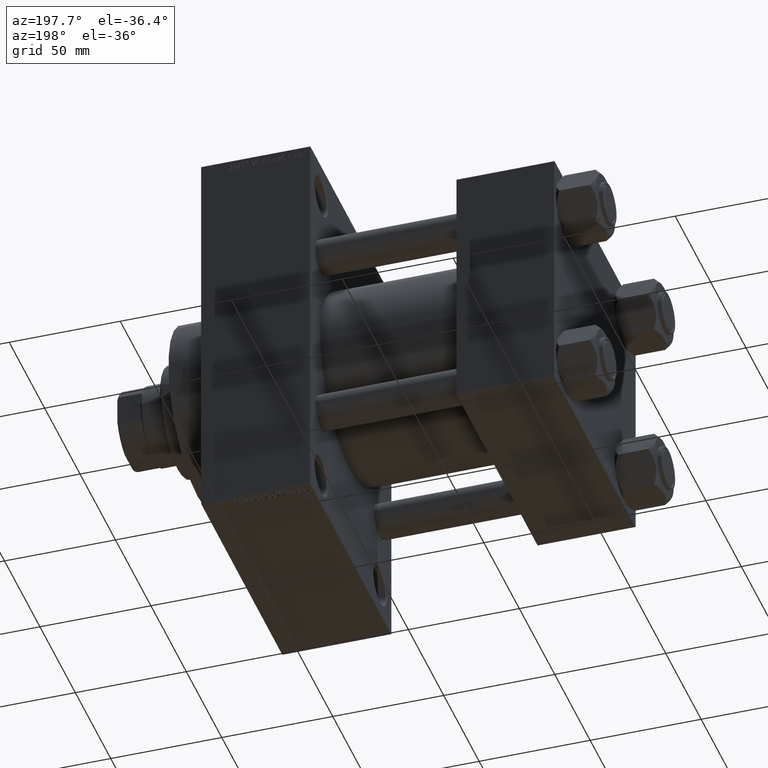
[diagram: clean part render]
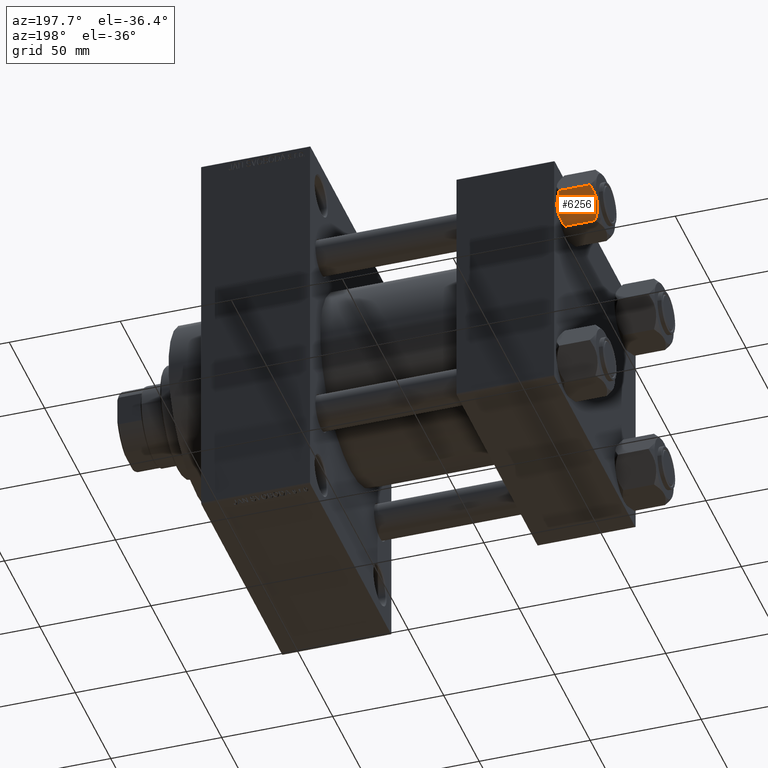
[diagram: same view with one face highlighted and labeled with its STEP entity id]
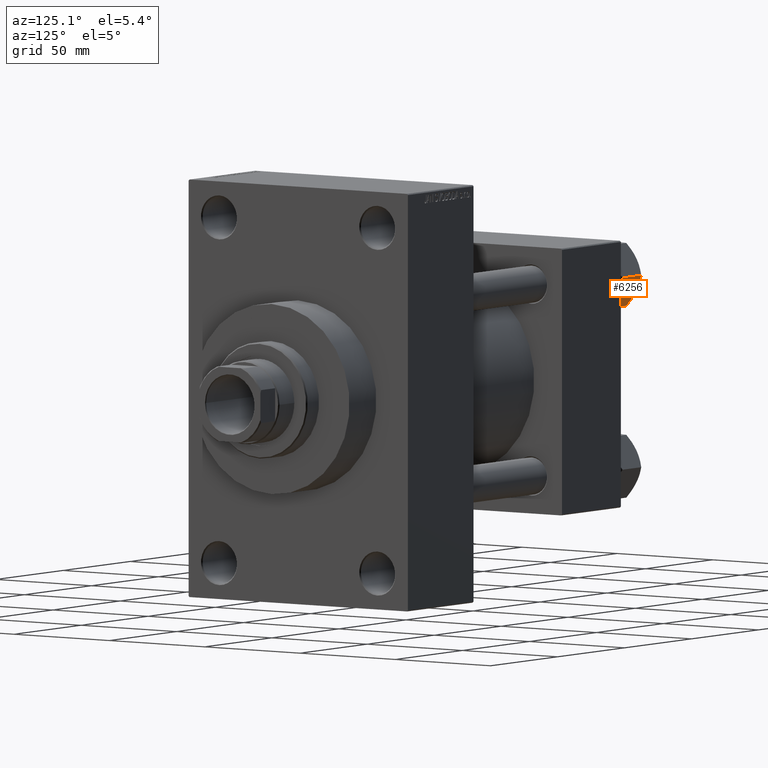
[diagram: same view with one face highlighted and labeled with its STEP entity id]
A machine part, auxiliary view. The second image highlights one B-rep face of the part: STEP entity #6256.
A second angle (auxiliary view) of the same face is appended — the face is thin or edge-on in the first view.
In plain terms, the highlighted planar face has unit normal (-0, -0.866, 0.5).
Its self-contained STEP definition (entity closure, byte-faithful):
#491 = DIRECTION ( 'NONE',  ( -0.8660254037844387076, -0.4999999999999999445, 0.000000000000000000 ) ) ;
#674 = EDGE_CURVE ( 'NONE', #12851, #747, #17243, .T. ) ;
#747 = VERTEX_POINT ( 'NONE', #45931 ) ;
#1223 = ORIENTED_EDGE ( 'NONE', *, *, #23097, .F. ) ;
#1274 = CARTESIAN_POINT ( 'NONE',  ( 15.52647173767732980, 0.1619957022865022300, -16.00000000000000000 ) ) ;
#1327 = LINE ( 'NONE', #11978, #15744 ) ;
#2324 = ORIENTED_EDGE ( 'NONE', *, *, #46657, .F. ) ;
#2603 = ORIENTED_EDGE ( 'NONE', *, *, #12906, .F. ) ;
#2804 = LINE ( 'NONE', #17521, #21086 ) ;
#4386 = ORIENTED_EDGE ( 'NONE', *, *, #29145, .F. ) ;
#4981 = EDGE_CURVE ( 'NONE', #14724, #28243, #32180, .T. ) ;
#5176 = CARTESIAN_POINT ( 'NONE',  ( 13.02784502466562699, 4.489744118371587156, -17.80281335400755083 ) ) ;
#6256 = ADVANCED_FACE ( 'NONE', ( #7038 ), #33533, .F. ) ;
#7038 = FACE_OUTER_BOUND ( 'NONE', #22207, .T. ) ;
#7987 = CARTESIAN_POINT ( 'NONE',  ( 7.810000000000001386, 13.52731680711293905, -18.00000000000000000 ) ) ;
#8601 = CARTESIAN_POINT ( 'NONE',  ( 8.502393313253755025, 12.32805640973648309, -16.58801072835992585 ) ) ;
#8981 = VERTEX_POINT ( 'NONE', #43985 ) ;
#9034 = VERTEX_POINT ( 'NONE', #43511 ) ;
#9283 = ORIENTED_EDGE ( 'NONE', *, *, #27317, .T. ) ;
#9458 = CARTESIAN_POINT ( 'NONE',  ( 8.506059550806622127, 12.32170630002230283, -1.434462921875002683 ) ) ;
#9694 = CARTESIAN_POINT ( 'NONE',  ( 9.124083218049239719, 11.25125790807803483, -0.9473872146228128344 ) ) ;
#9742 = ORIENTED_EDGE ( 'NONE', *, *, #4981, .F. ) ;
#10916 = DIRECTION ( 'NONE',  ( 0.4999999999999999445, -0.8660254037844387076, 0.000000000000000000 ) ) ;
#11978 = CARTESIAN_POINT ( 'NONE',  ( 7.810000000000001386, 13.52731680711293905, -16.00000000000000000 ) ) ;
#12007 = ORIENTED_EDGE ( 'NONE', *, *, #17700, .F. ) ;
#12046 = B_SPLINE_CURVE_WITH_KNOTS ( 'NONE', 3,
 ( #41631, #8601, #26221, #33677, #41155, #26927, #16057, #23064 ),
 .UNSPECIFIED., .F., .F.,
 ( 4, 2, 2, 4 ),
 ( 4.472842641813524820E-07, 0.003945636373369301383, 0.005918230917921860935, 0.007890825462474420487 ),
 .UNSPECIFIED. ) ;
#12851 = VERTEX_POINT ( 'NONE', #17112 ) ;
#12906 = EDGE_CURVE ( 'NONE', #44773, #12851, #42910, .T. ) ;
#13318 = CARTESIAN_POINT ( 'NONE',  ( 11.05297796109638320, 7.910314210667883650, 2.165016213181991667E-15 ) ) ;
#13552 = CARTESIAN_POINT ( 'NONE',  ( 9.439480280627263298, 10.70497417113492489, -0.7317196846281137645 ) ) ;
#13629 = VECTOR ( 'NONE', #47331, 999.9999999999998863 ) ;
#13812 = CARTESIAN_POINT ( 'NONE',  ( 7.810000000000001386, 13.52731680711293905, -16.00000000000000000 ) ) ;
#14047 = LINE ( 'NONE', #13812, #35471 ) ;
#14724 = VERTEX_POINT ( 'NONE', #16410 ) ;
#15421 = CARTESIAN_POINT ( 'NONE',  ( 15.62000000000000455, -1.379485931020374819E-15, -16.00000000000000000 ) ) ;
#15744 = VECTOR ( 'NONE', #16050, 999.9999999999998863 ) ;
#15781 = VECTOR ( 'NONE', #21098, 999.9999999999998863 ) ;
#16037 = CARTESIAN_POINT ( 'NONE',  ( 12.37702203890362895, 5.617002596445055396, -18.00000000000001066 ) ) ;
#16050 = DIRECTION ( 'NONE',  ( 0.4999999999999999445, -0.8660254037844387076, 0.000000000000000000 ) ) ;
#16057 = CARTESIAN_POINT ( 'NONE',  ( 11.38181071908714870, 7.340759166634869715, -18.00000000000000355 ) ) ;
#16100 = EDGE_CURVE ( 'NONE', #40617, #17999, #22963, .T. ) ;
#16410 = CARTESIAN_POINT ( 'NONE',  ( 7.903528262322677023, 13.36532110482643176, -2.000000000000000000 ) ) ;
#16832 = CARTESIAN_POINT ( 'NONE',  ( 12.04818928091285812, 6.186557640478062225, 2.165016213181991667E-15 ) ) ;
#16849 = B_SPLINE_CURVE_WITH_KNOTS ( 'NONE', 3,
 ( #42711, #13318, #35236, #13552, #9694, #9458, #39096, #20292 ),
 .UNSPECIFIED., .F., .F.,
 ( 4, 2, 2, 4 ),
 ( 0.007890825462474437835, 0.01181022244528555538, 0.01376992093669111156, 0.01572961942809666946 ),
 .UNSPECIFIED. ) ;
#17072 = CARTESIAN_POINT ( 'NONE',  ( 13.04337073483128506, 4.462852799541082938, -0.2430846701012968347 ) ) ;
#17112 = CARTESIAN_POINT ( 'NONE',  ( 15.62000000000000455, -1.379485931020374819E-15, -1.999999999999998224 ) ) ;
#17221 = CARTESIAN_POINT ( 'NONE',  ( 7.810000000000001386, 13.52731680711293905, -1.999999999999998224 ) ) ;
#17243 = LINE ( 'NONE', #42328, #15781 ) ;
#17521 = CARTESIAN_POINT ( 'NONE',  ( 7.810000000000001386, 13.52731680711293905, -18.00000000000000000 ) ) ;
#17700 = EDGE_CURVE ( 'NONE', #9034, #40617, #12046, .T. ) ;
#17999 = VERTEX_POINT ( 'NONE', #1274 ) ;
#19185 = CARTESIAN_POINT ( 'NONE',  ( 7.810000000000000497, 13.52731680711293905, -1.999999999999998224 ) ) ;
#20292 = CARTESIAN_POINT ( 'NONE',  ( 7.903528262322677023, 13.36532110482643176, -2.000000000000000000 ) ) ;
#21086 = VECTOR ( 'NONE', #32243, 1000.000000000000000 ) ;
#21098 = DIRECTION ( 'NONE',  ( -0.4999999999999999445, 0.8660254037844387076, 0.000000000000000000 ) ) ;
#22207 = EDGE_LOOP ( 'NONE', ( #4386, #9283, #9742, #1223, #29563, #30905, #2603, #2324, #38723, #12007 ) ) ;
#22963 = B_SPLINE_CURVE_WITH_KNOTS ( 'NONE', 3,
 ( #35083, #16037, #5176, #24237, #27620, #30758, #27140, #24003 ),
 .UNSPECIFIED., .F., .F.,
 ( 4, 2, 2, 4 ),
 ( 0.007890825462474420487, 0.01181022244528553804, 0.01376992093669109421, 0.01572961942809665212 ),
 .UNSPECIFIED. ) ;
#23023 = VERTEX_POINT ( 'NONE', #35481 ) ;
#23064 = CARTESIAN_POINT ( 'NONE',  ( 11.71500000000000519, 6.763658403556469523, -18.00000000000000000 ) ) ;
#23097 = EDGE_CURVE ( 'NONE', #23023, #14724, #16849, .T. ) ;
#24003 = CARTESIAN_POINT ( 'NONE',  ( 15.52647173767732980, 0.1619957022865022300, -16.00000000000000000 ) ) ;
#24237 = CARTESIAN_POINT ( 'NONE',  ( 13.99051971937273997, 2.822342635978008385, -17.26828031537188934 ) ) ;
#26221 = CARTESIAN_POINT ( 'NONE',  ( 9.114548888011785976, 11.26777185211903998, -17.08577173959729478 ) ) ;
#26927 = CARTESIAN_POINT ( 'NONE',  ( 11.04378428799595468, 7.926238119586002995, -17.94910618364699317 ) ) ;
#27140 = CARTESIAN_POINT ( 'NONE',  ( 15.22736220980735844, 0.6800686015852226429, -16.29368822085855228 ) ) ;
#27317 = EDGE_CURVE ( 'NONE', #8981, #28243, #2804, .T. ) ;
#27620 = CARTESIAN_POINT ( 'NONE',  ( 14.30591678195076355, 2.276058899034896221, -17.05261278537718184 ) ) ;
#28243 = VERTEX_POINT ( 'NONE', #19185 ) ;
#29145 = EDGE_CURVE ( 'NONE', #8981, #9034, #1327, .T. ) ;
#29563 = ORIENTED_EDGE ( 'NONE', *, *, #47284, .F. ) ;
#30177 = DIRECTION ( 'NONE',  ( 0.4999999999999998890, -0.8660254037844385966, 0.000000000000000000 ) ) ;
#30758 = CARTESIAN_POINT ( 'NONE',  ( 14.92394044919338114, 1.205610507090631334, -16.56553707812499354 ) ) ;
#30905 = ORIENTED_EDGE ( 'NONE', *, *, #674, .F. ) ;
#32180 = LINE ( 'NONE', #17221, #13629 ) ;
#32243 = DIRECTION ( 'NONE',  ( -0.000000000000000000, -0.000000000000000000, 1.000000000000000000 ) ) ;
#32540 = DIRECTION ( 'NONE',  ( -0.000000000000000000, -0.000000000000000000, 1.000000000000000000 ) ) ;
#33144 = CARTESIAN_POINT ( 'NONE',  ( 11.71500000000000519, 6.763658403556469523, -18.00000000000000000 ) ) ;
#33533 = PLANE ( 'NONE',  #40633 ) ;
#33677 = CARTESIAN_POINT ( 'NONE',  ( 10.06459418565412278, 9.622245127110613083, -17.61639331488794014 ) ) ;
#35083 = CARTESIAN_POINT ( 'NONE',  ( 11.71500000000000519, 6.763658403556469523, -18.00000000000000000 ) ) ;
#35151 = CARTESIAN_POINT ( 'NONE',  ( 14.31545111198821552, 2.259544954993893295, -0.9142282604026940040 ) ) ;
#35236 = CARTESIAN_POINT ( 'NONE',  ( 10.40215497533437450, 9.037572688741345672, -0.1971866459924547788 ) ) ;
#35392 = CARTESIAN_POINT ( 'NONE',  ( 14.92760668674625002, 1.199260397376449072, -1.411989271640066601 ) ) ;
#35471 = VECTOR ( 'NONE', #10916, 999.9999999999998863 ) ;
#35481 = CARTESIAN_POINT ( 'NONE',  ( 11.71500000000000519, 6.763658403556469523, 0.000000000000000000 ) ) ;
#36146 = CARTESIAN_POINT ( 'NONE',  ( 15.62000000000000455, -1.379485931020374819E-15, -18.00000000000000000 ) ) ;
#38052 = CARTESIAN_POINT ( 'NONE',  ( 13.36540581434588049, 3.905071680002324630, -0.3836066851120584764 ) ) ;
#38291 = CARTESIAN_POINT ( 'NONE',  ( 11.71500000000000519, 6.763658403556469523, 0.000000000000000000 ) ) ;
#38723 = ORIENTED_EDGE ( 'NONE', *, *, #16100, .F. ) ;
#39096 = CARTESIAN_POINT ( 'NONE',  ( 8.202637790192646605, 12.84724820552771085, -1.706311779141445717 ) ) ;
#40479 = B_SPLINE_CURVE_WITH_KNOTS ( 'NONE', 3,
 ( #42387, #35392, #35151, #38052, #17072, #45280, #16832, #38291 ),
 .UNSPECIFIED., .F., .F.,
 ( 4, 2, 2, 4 ),
 ( 4.472842641970240738E-07, 0.003945636373369317863, 0.005918230917921878283, 0.007890825462474437835 ),
 .UNSPECIFIED. ) ;
#40617 = VERTEX_POINT ( 'NONE', #33144 ) ;
#40633 = AXIS2_PLACEMENT_3D ( 'NONE', #7987, #491, #30177 ) ;
#41155 = CARTESIAN_POINT ( 'NONE',  ( 10.38662926516872353, 9.064464007571851667, -17.75691532989870680 ) ) ;
#41631 = CARTESIAN_POINT ( 'NONE',  ( 7.903528262322677023, 13.36532110482643176, -16.00000000000000000 ) ) ;
#42328 = CARTESIAN_POINT ( 'NONE',  ( 7.810000000000001386, 13.52731680711293905, -1.999999999999998224 ) ) ;
#42387 = CARTESIAN_POINT ( 'NONE',  ( 15.52647173767732980, 0.1619957022865022300, -2.000000000000000000 ) ) ;
#42711 = CARTESIAN_POINT ( 'NONE',  ( 11.71500000000000519, 6.763658403556469523, 0.000000000000000000 ) ) ;
#42910 = LINE ( 'NONE', #36146, #44648 ) ;
#43511 = CARTESIAN_POINT ( 'NONE',  ( 7.903528262322677023, 13.36532110482643176, -16.00000000000000000 ) ) ;
#43985 = CARTESIAN_POINT ( 'NONE',  ( 7.810000000000000497, 13.52731680711293905, -16.00000000000000000 ) ) ;
#44648 = VECTOR ( 'NONE', #32540, 1000.000000000000000 ) ;
#44773 = VERTEX_POINT ( 'NONE', #15421 ) ;
#45280 = CARTESIAN_POINT ( 'NONE',  ( 12.38621571200405924, 5.601078687526928945, -0.05089381635301384876 ) ) ;
#45931 = CARTESIAN_POINT ( 'NONE',  ( 15.52647173767732980, 0.1619957022865022300, -2.000000000000000000 ) ) ;
#46657 = EDGE_CURVE ( 'NONE', #17999, #44773, #14047, .T. ) ;
#47284 = EDGE_CURVE ( 'NONE', #747, #23023, #40479, .T. ) ;
#47331 = DIRECTION ( 'NONE',  ( -0.4999999999999999445, 0.8660254037844387076, 0.000000000000000000 ) ) ;